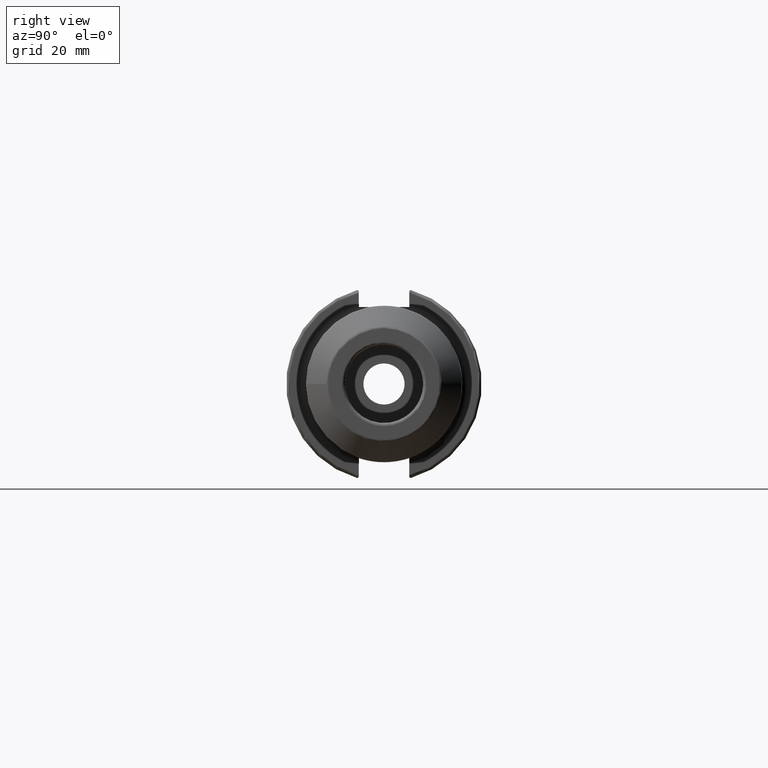
[diagram: clean part render]
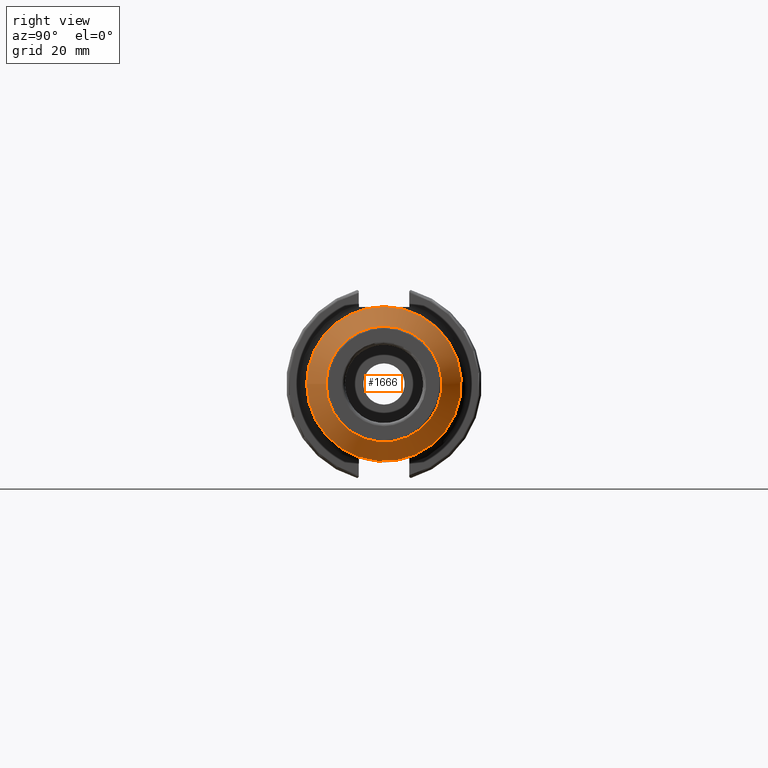
[diagram: same view with one face highlighted and labeled with its STEP entity id]
A machine part, right view. The second image highlights one B-rep face of the part: STEP entity #1666.
In plain terms, the highlighted conical surface has half-angle 45 deg.
Its self-contained STEP definition (entity closure, byte-faithful):
#164=FACE_OUTER_BOUND('',#265,.T.);
#265=EDGE_LOOP('',(#1222,#1223,#1224,#1225,#1226,#1227));
#374=CIRCLE('',#1805,18.7928932188135);
#375=CIRCLE('',#1806,18.7928932188135);
#376=CIRCLE('',#1808,25.1071067811865);
#377=CIRCLE('',#1809,25.1071067811865);
#465=LINE('',#2827,#559);
#559=VECTOR('',#2075,21.95);
#737=VERTEX_POINT('',#2820);
#738=VERTEX_POINT('',#2822);
#739=VERTEX_POINT('',#2826);
#740=VERTEX_POINT('',#2828);
#928=EDGE_CURVE('',#737,#738,#374,.T.);
#929=EDGE_CURVE('',#738,#737,#375,.T.);
#930=EDGE_CURVE('',#738,#739,#465,.T.);
#931=EDGE_CURVE('',#740,#739,#376,.T.);
#932=EDGE_CURVE('',#739,#740,#377,.T.);
#1222=ORIENTED_EDGE('',*,*,#929,.F.);
#1223=ORIENTED_EDGE('',*,*,#930,.T.);
#1224=ORIENTED_EDGE('',*,*,#931,.F.);
#1225=ORIENTED_EDGE('',*,*,#932,.F.);
#1226=ORIENTED_EDGE('',*,*,#930,.F.);
#1227=ORIENTED_EDGE('',*,*,#928,.F.);
#1639=CONICAL_SURFACE('',#1807,21.95,0.785398163397448);
#1666=ADVANCED_FACE('',(#164),#1639,.T.);
#1805=AXIS2_PLACEMENT_3D('',#2823,#2069,#2070);
#1806=AXIS2_PLACEMENT_3D('',#2824,#2071,#2072);
#1807=AXIS2_PLACEMENT_3D('',#2825,#2073,#2074);
#1808=AXIS2_PLACEMENT_3D('',#2829,#2076,#2077);
#1809=AXIS2_PLACEMENT_3D('',#2830,#2078,#2079);
#2069=DIRECTION('center_axis',(1.,0.,0.));
#2070=DIRECTION('ref_axis',(0.,-1.,3.06161699786838E-17));
#2071=DIRECTION('center_axis',(1.,0.,0.));
#2072=DIRECTION('ref_axis',(0.,-1.,3.06161699786838E-17));
#2073=DIRECTION('center_axis',(-1.,0.,0.));
#2074=DIRECTION('ref_axis',(0.,1.,0.));
#2075=DIRECTION('',(-0.707106781186548,-0.707106781186547,-8.65956056235493E-17));
#2076=DIRECTION('center_axis',(-1.,0.,0.));
#2077=DIRECTION('ref_axis',(0.,-1.,3.06161699786838E-17));
#2078=DIRECTION('center_axis',(-1.,0.,0.));
#2079=DIRECTION('ref_axis',(0.,-1.,3.06161699786838E-17));
#2820=CARTESIAN_POINT('',(152.107106781187,-2.30146565271379E-15,18.7928932188135));
#2822=CARTESIAN_POINT('',(152.107106781187,-18.7928932188134,-2.30146565271379E-15));
#2823=CARTESIAN_POINT('Origin',(152.107106781187,0.,-2.87683206589224E-15));
#2824=CARTESIAN_POINT('Origin',(152.107106781187,0.,-2.87683206589224E-15));
#2825=CARTESIAN_POINT('Origin',(148.95,0.,0.));
#2826=CARTESIAN_POINT('',(145.792893218813,-25.1071067811865,-3.07473379554309E-15));
#2827=CARTESIAN_POINT('',(148.95,-21.95,-2.68809972412844E-15));
#2828=CARTESIAN_POINT('',(145.792893218813,-3.07473379554309E-15,25.1071067811865));
#2829=CARTESIAN_POINT('Origin',(145.792893218813,0.,-3.84341724442886E-15));
#2830=CARTESIAN_POINT('Origin',(145.792893218813,0.,-3.84341724442886E-15));